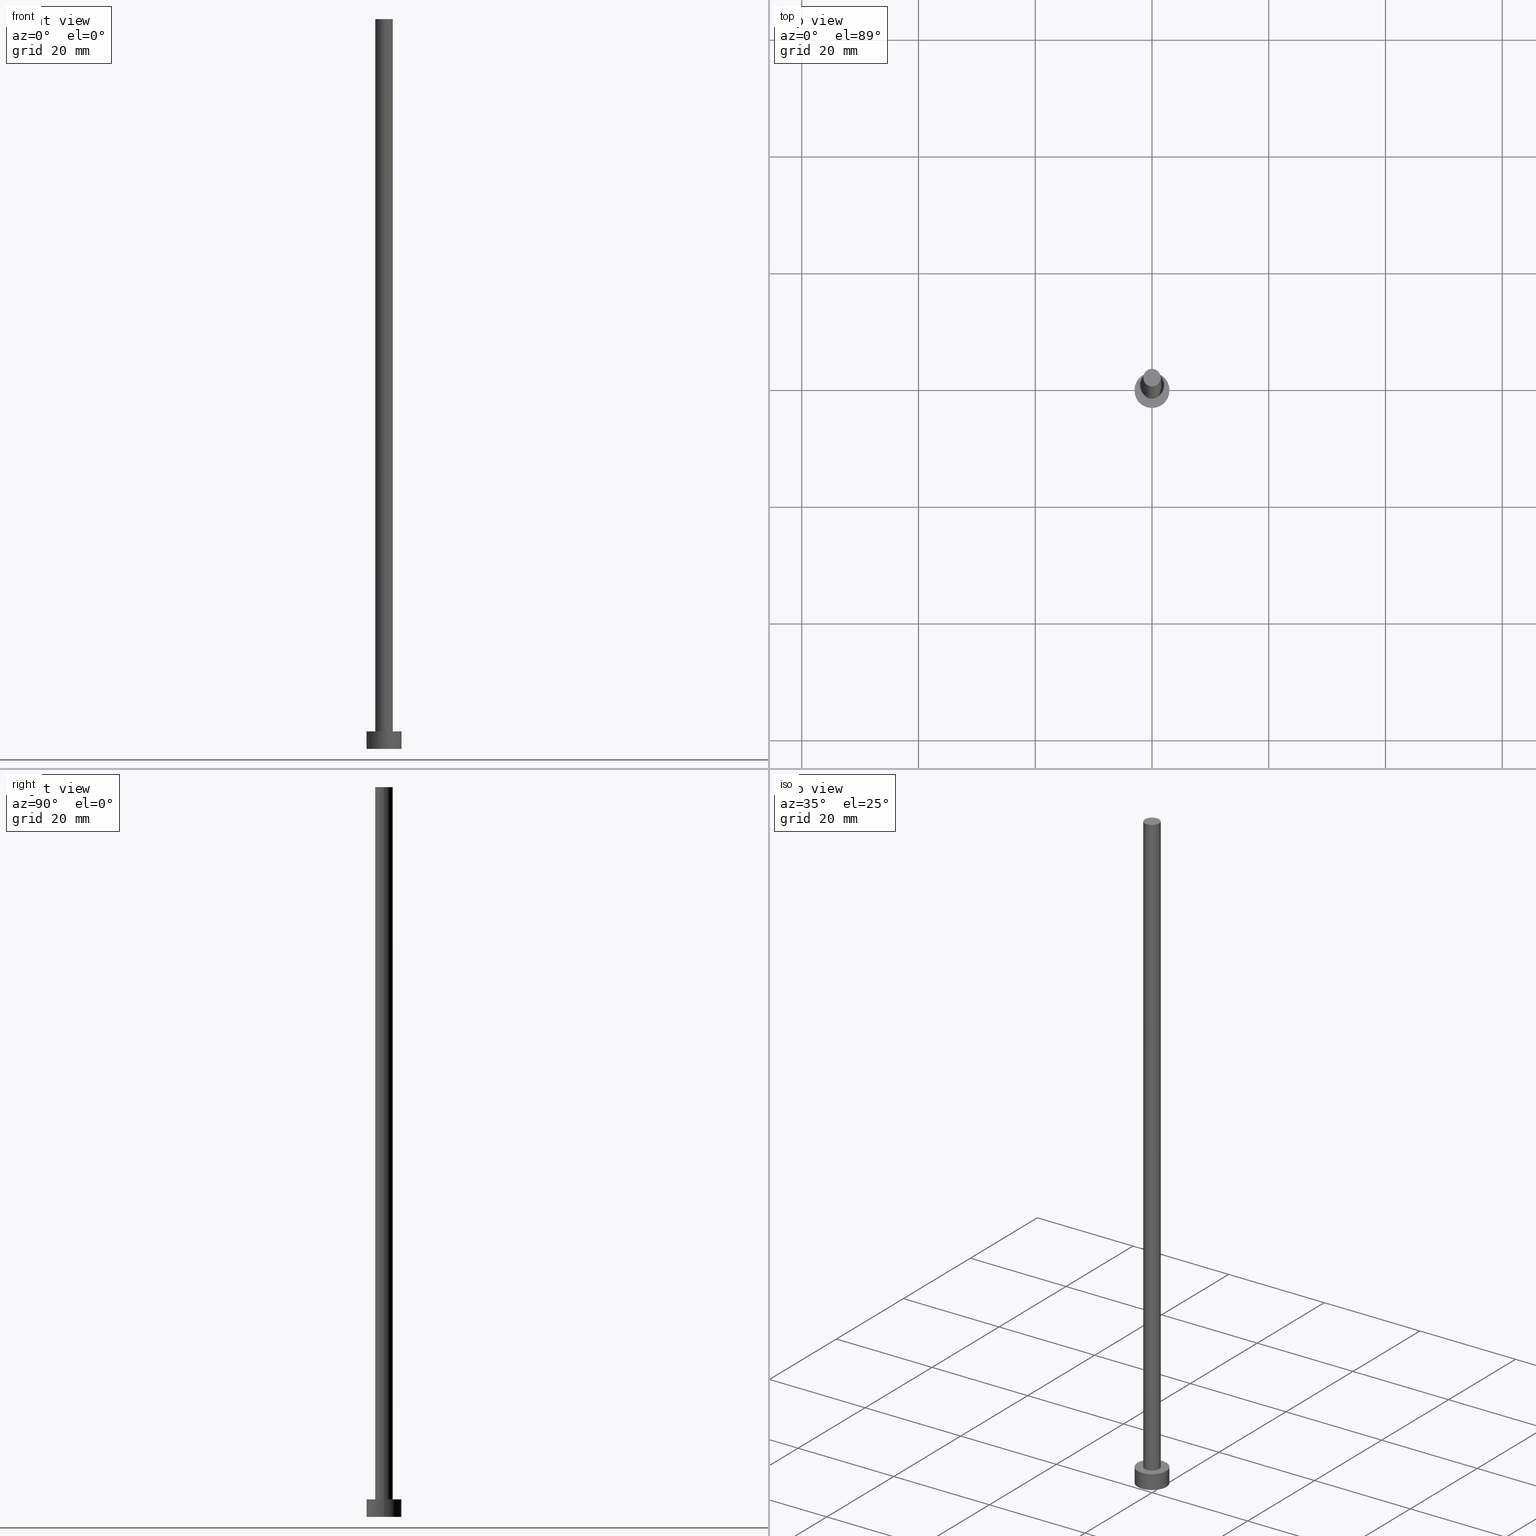
[diagram: canonical four-view strip — front | top / right | iso, engineering-drawing reading convention]
A machine part, canonical four-view strip (front | top / right | iso — engineering-drawing reading convention). The complete STEP part file that produces these views, byte-faithful:
ISO-10303-21;
HEADER;
FILE_DESCRIPTION (( 'STEP AP203' ),
    '1' );
FILE_NAME ('f0bf.STEP',
    '2023-02-13T16:39:10',
    ( '' ),
    ( '' ),
    'SwSTEP 2.0',
    'SolidWorks 2019',
    '' );
FILE_SCHEMA (( 'CONFIG_CONTROL_DESIGN' ));
ENDSEC;

DATA;
#1 = CC_DESIGN_PERSON_AND_ORGANIZATION_ASSIGNMENT ( #111, #208, ( #214 ) ) ;
#2 = VERTEX_POINT ( 'NONE', #238 ) ;
#3 = DIRECTION ( 'NONE',  ( 0.000000000000000000, 0.000000000000000000, 1.000000000000000000 ) ) ;
#4 = CARTESIAN_POINT ( 'NONE',  ( 3.000000000000000444, 3.673940397442060361E-16, 3.000000000000000000 ) ) ;
#5 = APPROVAL_PERSON_ORGANIZATION ( #205, #65, #112 ) ;
#6 = CARTESIAN_POINT ( 'NONE',  ( 0.000000000000000000, 0.000000000000000000, 125.0000000000000000 ) ) ;
#7 = FACE_OUTER_BOUND ( 'NONE', #162, .T. ) ;
#8 = CARTESIAN_POINT ( 'NONE',  ( 0.000000000000000000, 0.000000000000000000, 3.000000000000000000 ) ) ;
#9 = APPROVAL_STATUS ( 'not_yet_approved' ) ;
#10 = ADVANCED_FACE ( 'NONE', ( #198 ), #222, .T. ) ;
#11 = ORIENTED_EDGE ( 'NONE', *, *, #229, .T. ) ;
#12 =( NAMED_UNIT ( * ) SI_UNIT ( $, .STERADIAN. ) SOLID_ANGLE_UNIT ( ) );
#13 = VECTOR ( 'NONE', #228, 1000.000000000000000 ) ;
#14 = PERSON_AND_ORGANIZATION ( #225, #63 ) ;
#15 = AXIS2_PLACEMENT_3D ( 'NONE', #6, #125, #182 ) ;
#16 = AXIS2_PLACEMENT_3D ( 'NONE', #106, #166, #60 ) ;
#17 = APPROVAL_STATUS ( 'not_yet_approved' ) ;
#18 = ORIENTED_EDGE ( 'NONE', *, *, #135, .T. ) ;
#19 = PRODUCT_RELATED_PRODUCT_CATEGORY ( 'detail', '', ( #214 ) ) ;
#20 = CARTESIAN_POINT ( 'NONE',  ( 0.000000000000000000, 0.000000000000000000, 125.0000000000000000 ) ) ;
#21 = DIRECTION ( 'NONE',  ( 1.000000000000000000, 0.000000000000000000, 0.000000000000000000 ) ) ;
#22 = AXIS2_PLACEMENT_3D ( 'NONE', #152, #219, #148 ) ;
#23 = CARTESIAN_POINT ( 'NONE',  ( 0.000000000000000000, 0.000000000000000000, 125.0000000000000000 ) ) ;
#24 = CC_DESIGN_PERSON_AND_ORGANIZATION_ASSIGNMENT ( #14, #191, ( #123 ) ) ;
#25 = DIRECTION ( 'NONE',  ( -0.000000000000000000, -0.000000000000000000, -1.000000000000000000 ) ) ;
#26 = FACE_BOUND ( 'NONE', #30, .T. ) ;
#27 = EDGE_CURVE ( 'NONE', #52, #2, #127, .T. ) ;
#28 = APPROVAL_PERSON_ORGANIZATION ( #207, #45, #249 ) ;
#29 = CARTESIAN_POINT ( 'NONE',  ( 0.000000000000000000, 0.000000000000000000, 3.000000000000000000 ) ) ;
#30 = EDGE_LOOP ( 'NONE', ( #33, #42 ) ) ;
#31 = DIRECTION ( 'NONE',  ( 1.000000000000000000, 0.000000000000000000, 0.000000000000000000 ) ) ;
#32 = CALENDAR_DATE ( 2023, 13, 2 ) ;
#33 = ORIENTED_EDGE ( 'NONE', *, *, #229, .F. ) ;
#34 = CYLINDRICAL_SURFACE ( 'NONE', #189, 3.000000000000000444 ) ;
#35 = CC_DESIGN_DATE_AND_TIME_ASSIGNMENT ( #94, #73, ( #59 ) ) ;
#36 =( GEOMETRIC_REPRESENTATION_CONTEXT ( 3 ) GLOBAL_UNCERTAINTY_ASSIGNED_CONTEXT ( ( #154 ) ) GLOBAL_UNIT_ASSIGNED_CONTEXT ( ( #142, #71, #12 ) ) REPRESENTATION_CONTEXT ( 'NONE', 'WORKASPACE' ) );
#37 = EDGE_LOOP ( 'NONE', ( #87, #121, #93, #122 ) ) ;
#38 = AXIS2_PLACEMENT_3D ( 'NONE', #23, #178, #224 ) ;
#39 = COORDINATED_UNIVERSAL_TIME_OFFSET ( 1, 0, .AHEAD. ) ;
#40 = EDGE_LOOP ( 'NONE', ( #188, #213, #194, #57 ) ) ;
#41 = VERTEX_POINT ( 'NONE', #58 ) ;
#42 = ORIENTED_EDGE ( 'NONE', *, *, #253, .F. ) ;
#43 = ADVANCED_FACE ( 'NONE', ( #239 ), #61, .T. ) ;
#44 = LINE ( 'NONE', #169, #133 ) ;
#45 = APPROVAL ( #85, 'NEUR�EN�' ) ;
#46 = CARTESIAN_POINT ( 'NONE',  ( -3.000000000000000444, 0.000000000000000000, 0.000000000000000000 ) ) ;
#47 = DIRECTION ( 'NONE',  ( 0.000000000000000000, 0.000000000000000000, 1.000000000000000000 ) ) ;
#48 = CARTESIAN_POINT ( 'NONE',  ( 1.500000000000000222, 1.836970198721029934E-16, 3.000000000000000000 ) ) ;
#49 = APPROVAL_DATE_TIME ( #226, #45 ) ;
#50 = APPLICATION_CONTEXT ( 'configuration controlled 3d designs of mechanical parts and assemblies' ) ;
#51 = MECHANICAL_CONTEXT ( 'NONE', #220, 'mechanical' ) ;
#52 = VERTEX_POINT ( 'NONE', #124 ) ;
#53 = VECTOR ( 'NONE', #66, 1000.000000000000000 ) ;
#54 = APPROVAL_DATE_TIME ( #117, #65 ) ;
#55 = VERTEX_POINT ( 'NONE', #48 ) ;
#56 = CIRCLE ( 'NONE', #144, 1.500000000000000222 ) ;
#57 = ORIENTED_EDGE ( 'NONE', *, *, #190, .F. ) ;
#58 = CARTESIAN_POINT ( 'NONE',  ( -1.500000000000000222, 0.000000000000000000, 125.0000000000000000 ) ) ;
#59 = SECURITY_CLASSIFICATION ( '', '', #251 ) ;
#60 = DIRECTION ( 'NONE',  ( 1.000000000000000000, 0.000000000000000000, -0.000000000000000000 ) ) ;
#61 = CYLINDRICAL_SURFACE ( 'NONE', #38, 1.500000000000000222 ) ;
#62 = DIRECTION ( 'NONE',  ( -0.000000000000000000, -0.000000000000000000, -1.000000000000000000 ) ) ;
#63 = ORGANIZATION ( 'NEUR�EN�', 'NEUR�EN�', '' ) ;
#64 = CYLINDRICAL_SURFACE ( 'NONE', #199, 1.500000000000000222 ) ;
#65 = APPROVAL ( #9, 'NEUR�EN�' ) ;
#66 = DIRECTION ( 'NONE',  ( -0.000000000000000000, -0.000000000000000000, -1.000000000000000000 ) ) ;
#67 = LINE ( 'NONE', #231, #53 ) ;
#68 = ORIENTED_EDGE ( 'NONE', *, *, #244, .F. ) ;
#69 = AXIS2_PLACEMENT_3D ( 'NONE', #173, #155, #245 ) ;
#70 = CALENDAR_DATE ( 2023, 13, 2 ) ;
#71 =( NAMED_UNIT ( * ) PLANE_ANGLE_UNIT ( ) SI_UNIT ( $, .RADIAN. ) );
#72 = EDGE_CURVE ( 'NONE', #41, #234, #177, .T. ) ;
#73 = DATE_TIME_ROLE ( 'classification_date' ) ;
#74 = CC_DESIGN_APPROVAL ( #65, ( #123 ) ) ;
#75 = ORIENTED_EDGE ( 'NONE', *, *, #190, .T. ) ;
#76 = EDGE_LOOP ( 'NONE', ( #99, #100, #18, #68 ) ) ;
#77 = CARTESIAN_POINT ( 'NONE',  ( -1.500000000000000222, 0.000000000000000000, 3.000000000000000000 ) ) ;
#78 = DIRECTION ( 'NONE',  ( -0.000000000000000000, -0.000000000000000000, -1.000000000000000000 ) ) ;
#79 = EDGE_CURVE ( 'NONE', #243, #52, #181, .T. ) ;
#80 = AXIS2_PLACEMENT_3D ( 'NONE', #129, #241, #151 ) ;
#81 = CARTESIAN_POINT ( 'NONE',  ( 0.000000000000000000, 0.000000000000000000, 3.000000000000000000 ) ) ;
#82 = DIRECTION ( 'NONE',  ( -1.000000000000000000, 0.000000000000000000, 0.000000000000000000 ) ) ;
#83 = DESIGN_CONTEXT ( 'detailed design', #50, 'design' ) ;
#84 = ORIENTED_EDGE ( 'NONE', *, *, #135, .F. ) ;
#85 = APPROVAL_STATUS ( 'not_yet_approved' ) ;
#86 = DATE_AND_TIME ( #70, #160 ) ;
#87 = ORIENTED_EDGE ( 'NONE', *, *, #27, .F. ) ;
#88 = CARTESIAN_POINT ( 'NONE',  ( -3.000000000000000444, 0.000000000000000000, 3.000000000000000000 ) ) ;
#89 = AXIS2_PLACEMENT_3D ( 'NONE', #29, #202, #31 ) ;
#90 = LINE ( 'NONE', #114, #13 ) ;
#91 = VECTOR ( 'NONE', #25, 1000.000000000000000 ) ;
#92 = VERTEX_POINT ( 'NONE', #46 ) ;
#93 = ORIENTED_EDGE ( 'NONE', *, *, #244, .T. ) ;
#94 = DATE_AND_TIME ( #115, #159 ) ;
#95 = APPROVAL_PERSON_ORGANIZATION ( #254, #197, #233 ) ;
#96 = AXIS2_PLACEMENT_3D ( 'NONE', #217, #185, #101 ) ;
#97 = PERSON_AND_ORGANIZATION ( #225, #63 ) ;
#98 = COORDINATED_UNIVERSAL_TIME_OFFSET ( 1, 0, .AHEAD. ) ;
#99 = ORIENTED_EDGE ( 'NONE', *, *, #209, .F. ) ;
#100 = ORIENTED_EDGE ( 'NONE', *, *, #27, .T. ) ;
#101 = DIRECTION ( 'NONE',  ( 1.000000000000000000, 0.000000000000000000, 0.000000000000000000 ) ) ;
#102 = ADVANCED_FACE ( 'NONE', ( #26, #179 ), #170, .T. ) ;
#103 = DIRECTION ( 'NONE',  ( 0.000000000000000000, 0.000000000000000000, 1.000000000000000000 ) ) ;
#104 = AXIS2_PLACEMENT_3D ( 'NONE', #184, #3, #130 ) ;
#105 = CIRCLE ( 'NONE', #22, 3.000000000000000444 ) ;
#106 = CARTESIAN_POINT ( 'NONE',  ( 0.000000000000000000, 0.000000000000000000, 3.000000000000000000 ) ) ;
#107 = CARTESIAN_POINT ( 'NONE',  ( 0.000000000000000000, 0.000000000000000000, 125.0000000000000000 ) ) ;
#108 = APPLICATION_PROTOCOL_DEFINITION ( 'international standard', 'config_control_design', 1994, #50 ) ;
#109 = EDGE_CURVE ( 'NONE', #92, #2, #212, .T. ) ;
#110 = VERTEX_POINT ( 'NONE', #77 ) ;
#111 = PERSON_AND_ORGANIZATION ( #225, #63 ) ;
#112 = APPROVAL_ROLE ( '' ) ;
#113 = EDGE_LOOP ( 'NONE', ( #143, #176 ) ) ;
#114 = CARTESIAN_POINT ( 'NONE',  ( 1.500000000000000222, 1.836970198721029934E-16, 125.0000000000000000 ) ) ;
#115 = CALENDAR_DATE ( 2023, 13, 2 ) ;
#116 = CC_DESIGN_DATE_AND_TIME_ASSIGNMENT ( #86, #136, ( #168 ) ) ;
#117 = DATE_AND_TIME ( #235, #216 ) ;
#118 = ORIENTED_EDGE ( 'NONE', *, *, #248, .F. ) ;
#119 = LOCAL_TIME ( 17, 39, 10.00000000000000000, #98 ) ;
#120 = COORDINATED_UNIVERSAL_TIME_OFFSET ( 1, 0, .AHEAD. ) ;
#121 = ORIENTED_EDGE ( 'NONE', *, *, #79, .F. ) ;
#122 = ORIENTED_EDGE ( 'NONE', *, *, #109, .T. ) ;
#123 = PRODUCT_DEFINITION_FORMATION_WITH_SPECIFIED_SOURCE ( 'LIBOVOLN�', '', #214, .NOT_KNOWN. ) ;
#124 = CARTESIAN_POINT ( 'NONE',  ( 3.000000000000000444, 3.673940397442060361E-16, 3.000000000000000000 ) ) ;
#125 = DIRECTION ( 'NONE',  ( 0.000000000000000000, 0.000000000000000000, 1.000000000000000000 ) ) ;
#126 = SHAPE_DEFINITION_REPRESENTATION ( #138, #180 ) ;
#127 = LINE ( 'NONE', #4, #91 ) ;
#128 = ORIENTED_EDGE ( 'NONE', *, *, #145, .T. ) ;
#129 = CARTESIAN_POINT ( 'NONE',  ( 0.000000000000000000, 0.000000000000000000, 0.000000000000000000 ) ) ;
#130 = DIRECTION ( 'NONE',  ( 1.000000000000000000, 0.000000000000000000, 0.000000000000000000 ) ) ;
#131 = ADVANCED_FACE ( 'NONE', ( #7 ), #236, .F. ) ;
#132 = PERSON_AND_ORGANIZATION_ROLE ( 'creator' ) ;
#133 = VECTOR ( 'NONE', #240, 1000.000000000000000 ) ;
#134 = CC_DESIGN_SECURITY_CLASSIFICATION ( #59, ( #123 ) ) ;
#135 = EDGE_CURVE ( 'NONE', #2, #92, #105, .T. ) ;
#136 = DATE_TIME_ROLE ( 'creation_date' ) ;
#137 = ORIENTED_EDGE ( 'NONE', *, *, #109, .F. ) ;
#138 = PRODUCT_DEFINITION_SHAPE ( 'NONE', 'NONE',  #168 ) ;
#139 = COORDINATED_UNIVERSAL_TIME_OFFSET ( 1, 0, .AHEAD. ) ;
#140 = CARTESIAN_POINT ( 'NONE',  ( 0.000000000000000000, 0.000000000000000000, 0.000000000000000000 ) ) ;
#141 = CIRCLE ( 'NONE', #89, 1.500000000000000222 ) ;
#142 =( LENGTH_UNIT ( ) NAMED_UNIT ( * ) SI_UNIT ( .MILLI., .METRE. ) );
#143 = ORIENTED_EDGE ( 'NONE', *, *, #79, .T. ) ;
#144 = AXIS2_PLACEMENT_3D ( 'NONE', #20, #103, #21 ) ;
#145 = EDGE_CURVE ( 'NONE', #234, #41, #56, .T. ) ;
#146 = PERSON_AND_ORGANIZATION ( #225, #63 ) ;
#147 = FACE_OUTER_BOUND ( 'NONE', #215, .T. ) ;
#148 = DIRECTION ( 'NONE',  ( 1.000000000000000000, 0.000000000000000000, 0.000000000000000000 ) ) ;
#149 = MANIFOLD_SOLID_BREP ( 'P�idat vysunut�m3', #157 ) ;
#150 = DIRECTION ( 'NONE',  ( 0.000000000000000000, 0.000000000000000000, 1.000000000000000000 ) ) ;
#151 = DIRECTION ( 'NONE',  ( 1.000000000000000000, 0.000000000000000000, -0.000000000000000000 ) ) ;
#152 = CARTESIAN_POINT ( 'NONE',  ( 0.000000000000000000, 0.000000000000000000, 0.000000000000000000 ) ) ;
#153 = COORDINATED_UNIVERSAL_TIME_OFFSET ( 1, 0, .AHEAD. ) ;
#154 = UNCERTAINTY_MEASURE_WITH_UNIT (LENGTH_MEASURE( 1.000000000000000082E-05 ), #142, 'distance_accuracy_value', 'NONE');
#155 = DIRECTION ( 'NONE',  ( 0.000000000000000000, 0.000000000000000000, 1.000000000000000000 ) ) ;
#156 = ORIENTED_EDGE ( 'NONE', *, *, #72, .T. ) ;
#157 = CLOSED_SHELL ( 'NONE', ( #43, #218, #10, #102, #131, #158, #204 ) ) ;
#158 = ADVANCED_FACE ( 'NONE', ( #147 ), #64, .T. ) ;
#159 = LOCAL_TIME ( 17, 39, 10.00000000000000000, #39 ) ;
#160 = LOCAL_TIME ( 17, 39, 10.00000000000000000, #139 ) ;
#161 = APPROVAL_DATE_TIME ( #211, #197 ) ;
#162 = EDGE_LOOP ( 'NONE', ( #137, #84 ) ) ;
#163 = PERSON_AND_ORGANIZATION_ROLE ( 'classification_officer' ) ;
#164 = CIRCLE ( 'NONE', #69, 1.500000000000000222 ) ;
#165 = ORIENTED_EDGE ( 'NONE', *, *, #72, .F. ) ;
#166 = DIRECTION ( 'NONE',  ( 0.000000000000000000, 0.000000000000000000, 1.000000000000000000 ) ) ;
#167 = PLANE ( 'NONE',  #15 ) ;
#168 = PRODUCT_DEFINITION ( 'NEZN�M�', '', #123, #83 ) ;
#169 = CARTESIAN_POINT ( 'NONE',  ( -1.500000000000000222, 0.000000000000000000, 125.0000000000000000 ) ) ;
#170 = PLANE ( 'NONE',  #16 ) ;
#171 = CC_DESIGN_APPROVAL ( #45, ( #168 ) ) ;
#172 = CARTESIAN_POINT ( 'NONE',  ( 0.000000000000000000, 0.000000000000000000, 3.000000000000000000 ) ) ;
#173 = CARTESIAN_POINT ( 'NONE',  ( 0.000000000000000000, 0.000000000000000000, 3.000000000000000000 ) ) ;
#174 = DIRECTION ( 'NONE',  ( 0.000000000000000000, 0.000000000000000000, 1.000000000000000000 ) ) ;
#175 = CALENDAR_DATE ( 2023, 13, 2 ) ;
#176 = ORIENTED_EDGE ( 'NONE', *, *, #209, .T. ) ;
#177 = CIRCLE ( 'NONE', #203, 1.500000000000000222 ) ;
#178 = DIRECTION ( 'NONE',  ( -0.000000000000000000, -0.000000000000000000, -1.000000000000000000 ) ) ;
#179 = FACE_OUTER_BOUND ( 'NONE', #113, .T. ) ;
#180 = ADVANCED_BREP_SHAPE_REPRESENTATION ( 'f0bf', ( #149, #252 ), #36 ) ;
#181 = CIRCLE ( 'NONE', #96, 3.000000000000000444 ) ;
#182 = DIRECTION ( 'NONE',  ( 1.000000000000000000, 0.000000000000000000, -0.000000000000000000 ) ) ;
#183 = CIRCLE ( 'NONE', #223, 3.000000000000000444 ) ;
#184 = CARTESIAN_POINT ( 'NONE',  ( 0.000000000000000000, 0.000000000000000000, 0.000000000000000000 ) ) ;
#185 = DIRECTION ( 'NONE',  ( 0.000000000000000000, 0.000000000000000000, 1.000000000000000000 ) ) ;
#186 = CARTESIAN_POINT ( 'NONE',  ( 1.500000000000000222, 1.836970198721029934E-16, 125.0000000000000000 ) ) ;
#187 = PERSON_AND_ORGANIZATION ( #225, #63 ) ;
#188 = ORIENTED_EDGE ( 'NONE', *, *, #145, .F. ) ;
#189 = AXIS2_PLACEMENT_3D ( 'NONE', #172, #242, #206 ) ;
#190 = EDGE_CURVE ( 'NONE', #41, #110, #44, .T. ) ;
#191 = PERSON_AND_ORGANIZATION_ROLE ( 'design_supplier' ) ;
#192 = PERSON_AND_ORGANIZATION_ROLE ( 'creator' ) ;
#193 = EDGE_LOOP ( 'NONE', ( #156, #128 ) ) ;
#194 = ORIENTED_EDGE ( 'NONE', *, *, #253, .T. ) ;
#195 = CARTESIAN_POINT ( 'NONE',  ( 0.000000000000000000, 0.000000000000000000, 125.0000000000000000 ) ) ;
#196 = DIRECTION ( 'NONE',  ( 1.000000000000000000, 0.000000000000000000, 0.000000000000000000 ) ) ;
#197 = APPROVAL ( #17, 'NEUR�EN�' ) ;
#198 = FACE_OUTER_BOUND ( 'NONE', #37, .T. ) ;
#199 = AXIS2_PLACEMENT_3D ( 'NONE', #195, #78, #82 ) ;
#200 = FACE_OUTER_BOUND ( 'NONE', #193, .T. ) ;
#201 = DIRECTION ( 'NONE',  ( -1.000000000000000000, 0.000000000000000000, 0.000000000000000000 ) ) ;
#202 = DIRECTION ( 'NONE',  ( 0.000000000000000000, 0.000000000000000000, 1.000000000000000000 ) ) ;
#203 = AXIS2_PLACEMENT_3D ( 'NONE', #107, #47, #196 ) ;
#204 = ADVANCED_FACE ( 'NONE', ( #200 ), #167, .T. ) ;
#205 = PERSON_AND_ORGANIZATION ( #225, #63 ) ;
#206 = DIRECTION ( 'NONE',  ( -1.000000000000000000, 0.000000000000000000, 0.000000000000000000 ) ) ;
#207 = PERSON_AND_ORGANIZATION ( #225, #63 ) ;
#208 = PERSON_AND_ORGANIZATION_ROLE ( 'design_owner' ) ;
#209 = EDGE_CURVE ( 'NONE', #52, #243, #183, .T. ) ;
#210 = CC_DESIGN_PERSON_AND_ORGANIZATION_ASSIGNMENT ( #146, #192, ( #123 ) ) ;
#211 = DATE_AND_TIME ( #175, #119 ) ;
#212 = CIRCLE ( 'NONE', #104, 3.000000000000000444 ) ;
#213 = ORIENTED_EDGE ( 'NONE', *, *, #248, .T. ) ;
#214 = PRODUCT ( 'f0bf', 'f0bf', '', ( #51 ) ) ;
#215 = EDGE_LOOP ( 'NONE', ( #118, #165, #75, #11 ) ) ;
#216 = LOCAL_TIME ( 17, 39, 10.00000000000000000, #120 ) ;
#217 = CARTESIAN_POINT ( 'NONE',  ( 0.000000000000000000, 0.000000000000000000, 3.000000000000000000 ) ) ;
#218 = ADVANCED_FACE ( 'NONE', ( #230 ), #34, .T. ) ;
#219 = DIRECTION ( 'NONE',  ( 0.000000000000000000, 0.000000000000000000, 1.000000000000000000 ) ) ;
#220 = APPLICATION_CONTEXT ( 'configuration controlled 3d designs of mechanical parts and assemblies' ) ;
#221 = DIRECTION ( 'NONE',  ( 1.000000000000000000, 0.000000000000000000, 0.000000000000000000 ) ) ;
#222 = CYLINDRICAL_SURFACE ( 'NONE', #247, 3.000000000000000444 ) ;
#223 = AXIS2_PLACEMENT_3D ( 'NONE', #81, #150, #221 ) ;
#224 = DIRECTION ( 'NONE',  ( -1.000000000000000000, 0.000000000000000000, 0.000000000000000000 ) ) ;
#225 = PERSON ( 'NEUR�EN�', 'NEUR�EN�', 'NEUR�EN�', ('NEUR�EN�'), ('NEUR�EN�'), ('NEUR�EN�') ) ;
#226 = DATE_AND_TIME ( #32, #232 ) ;
#227 = APPLICATION_PROTOCOL_DEFINITION ( 'international standard', 'config_control_design', 1994, #220 ) ;
#228 = DIRECTION ( 'NONE',  ( -0.000000000000000000, -0.000000000000000000, -1.000000000000000000 ) ) ;
#229 = EDGE_CURVE ( 'NONE', #110, #55, #141, .T. ) ;
#230 = FACE_OUTER_BOUND ( 'NONE', #76, .T. ) ;
#231 = CARTESIAN_POINT ( 'NONE',  ( -3.000000000000000444, 0.000000000000000000, 3.000000000000000000 ) ) ;
#232 = LOCAL_TIME ( 17, 39, 10.00000000000000000, #153 ) ;
#233 = APPROVAL_ROLE ( '' ) ;
#234 = VERTEX_POINT ( 'NONE', #186 ) ;
#235 = CALENDAR_DATE ( 2023, 13, 2 ) ;
#236 = PLANE ( 'NONE',  #80 ) ;
#237 = CC_DESIGN_APPROVAL ( #197, ( #59 ) ) ;
#238 = CARTESIAN_POINT ( 'NONE',  ( 3.000000000000000444, 3.673940397442060361E-16, 0.000000000000000000 ) ) ;
#239 = FACE_OUTER_BOUND ( 'NONE', #40, .T. ) ;
#240 = DIRECTION ( 'NONE',  ( -0.000000000000000000, -0.000000000000000000, -1.000000000000000000 ) ) ;
#241 = DIRECTION ( 'NONE',  ( 0.000000000000000000, 0.000000000000000000, 1.000000000000000000 ) ) ;
#242 = DIRECTION ( 'NONE',  ( -0.000000000000000000, -0.000000000000000000, -1.000000000000000000 ) ) ;
#243 = VERTEX_POINT ( 'NONE', #88 ) ;
#244 = EDGE_CURVE ( 'NONE', #243, #92, #67, .T. ) ;
#245 = DIRECTION ( 'NONE',  ( 1.000000000000000000, 0.000000000000000000, 0.000000000000000000 ) ) ;
#246 = CC_DESIGN_PERSON_AND_ORGANIZATION_ASSIGNMENT ( #97, #163, ( #59 ) ) ;
#247 = AXIS2_PLACEMENT_3D ( 'NONE', #8, #62, #201 ) ;
#248 = EDGE_CURVE ( 'NONE', #234, #55, #90, .T. ) ;
#249 = APPROVAL_ROLE ( '' ) ;
#250 = DIRECTION ( 'NONE',  ( 1.000000000000000000, 0.000000000000000000, 0.000000000000000000 ) ) ;
#251 = SECURITY_CLASSIFICATION_LEVEL ( 'unclassified' ) ;
#252 = AXIS2_PLACEMENT_3D ( 'NONE', #140, #174, #250 ) ;
#253 = EDGE_CURVE ( 'NONE', #55, #110, #164, .T. ) ;
#254 = PERSON_AND_ORGANIZATION ( #225, #63 ) ;
#255 = CC_DESIGN_PERSON_AND_ORGANIZATION_ASSIGNMENT ( #187, #132, ( #168 ) ) ;
ENDSEC;
END-ISO-10303-21;
